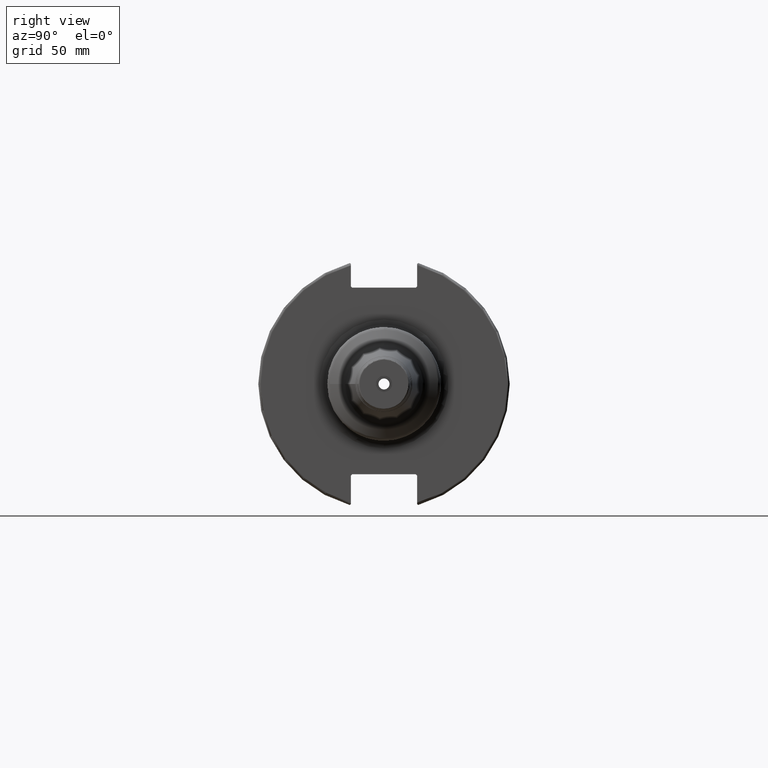
[diagram: clean part render]
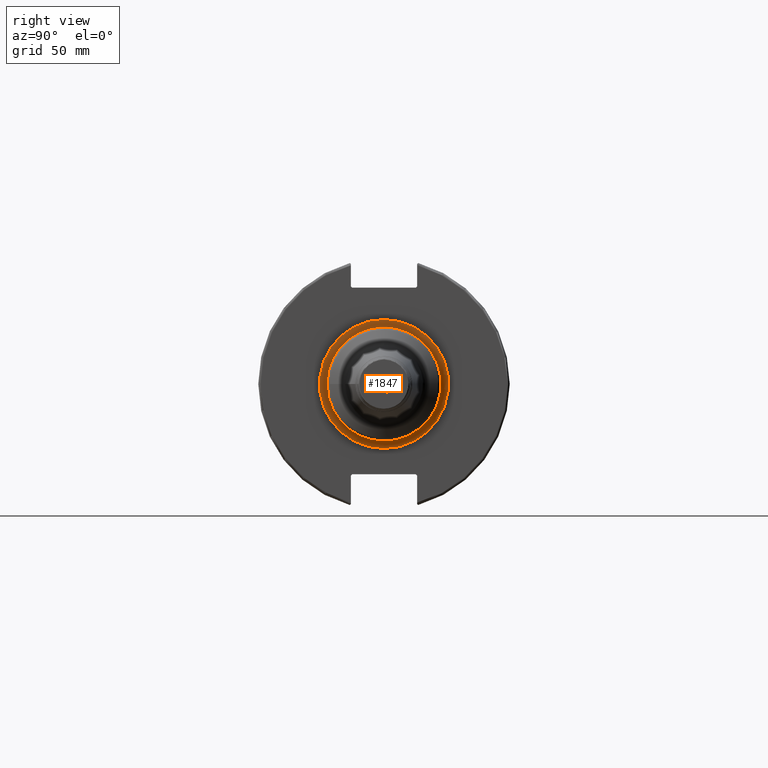
[diagram: same view with one face highlighted and labeled with its STEP entity id]
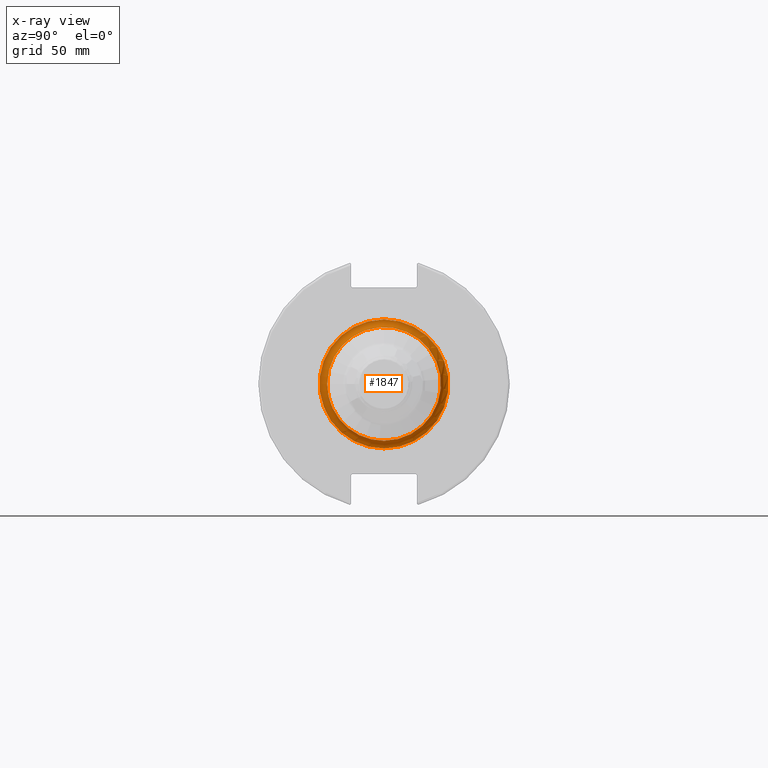
[diagram: x-ray of the same camera — body ghosted, the highlighted face saturated]
A machine part, right view. The second image highlights one B-rep face of the part: STEP entity #1847.
The next image is the same camera in x-ray: the body ghosted, the highlighted face saturated — about 0% of this face is hidden behind the body in this view.
In plain terms, the highlighted toroidal blend (fillet) surface has major radius 25.25 mm and minor (blend) radius 3 mm.
Its self-contained STEP definition (entity closure, byte-faithful):
#84=TOROIDAL_SURFACE('',#2038,25.25,3.);
#198=FACE_OUTER_BOUND('',#307,.T.);
#307=EDGE_LOOP('',(#1367,#1368,#1369,#1370,#1371));
#668=CIRCLE('',#2036,22.25);
#669=CIRCLE('',#2037,22.25);
#670=CIRCLE('',#2039,3.);
#671=CIRCLE('',#2040,25.25);
#787=VERTEX_POINT('',#2982);
#788=VERTEX_POINT('',#2984);
#789=VERTEX_POINT('',#2988);
#1005=EDGE_CURVE('',#788,#787,#668,.T.);
#1006=EDGE_CURVE('',#787,#788,#669,.T.);
#1007=EDGE_CURVE('',#788,#789,#670,.T.);
#1008=EDGE_CURVE('',#789,#789,#671,.T.);
#1367=ORIENTED_EDGE('',*,*,#1006,.T.);
#1368=ORIENTED_EDGE('',*,*,#1007,.T.);
#1369=ORIENTED_EDGE('',*,*,#1008,.T.);
#1370=ORIENTED_EDGE('',*,*,#1007,.F.);
#1371=ORIENTED_EDGE('',*,*,#1005,.T.);
#1847=ADVANCED_FACE('',(#198),#84,.F.);
#2036=AXIS2_PLACEMENT_3D('',#2985,#2372,#2373);
#2037=AXIS2_PLACEMENT_3D('',#2986,#2374,#2375);
#2038=AXIS2_PLACEMENT_3D('',#2987,#2376,#2377);
#2039=AXIS2_PLACEMENT_3D('',#2989,#2378,#2379);
#2040=AXIS2_PLACEMENT_3D('',#2990,#2380,#2381);
#2372=DIRECTION('center_axis',(-1.,0.,0.));
#2373=DIRECTION('ref_axis',(0.,-1.,-1.22464679914735E-16));
#2374=DIRECTION('center_axis',(-1.,0.,0.));
#2375=DIRECTION('ref_axis',(0.,-1.,-1.22464679914735E-16));
#2376=DIRECTION('center_axis',(-1.,0.,0.));
#2377=DIRECTION('ref_axis',(0.,0.,1.));
#2378=DIRECTION('center_axis',(0.,-1.,1.22464679914735E-16));
#2379=DIRECTION('ref_axis',(0.,-1.22464679914735E-16,-1.));
#2380=DIRECTION('center_axis',(1.,0.,0.));
#2381=DIRECTION('ref_axis',(0.,-1.,-1.22464679914735E-16));
#2982=CARTESIAN_POINT('',(22.05,-22.25,-2.72483912810286E-15));
#2984=CARTESIAN_POINT('',(22.05,-2.72483912810286E-15,-22.25));
#2985=CARTESIAN_POINT('Origin',(22.05,0.,0.));
#2986=CARTESIAN_POINT('Origin',(22.05,0.,0.));
#2987=CARTESIAN_POINT('Origin',(22.05,0.,0.));
#2988=CARTESIAN_POINT('',(19.05,-3.09223316784707E-15,-25.25));
#2989=CARTESIAN_POINT('Origin',(22.05,-3.09223316784707E-15,-25.25));
#2990=CARTESIAN_POINT('Origin',(19.05,0.,0.));